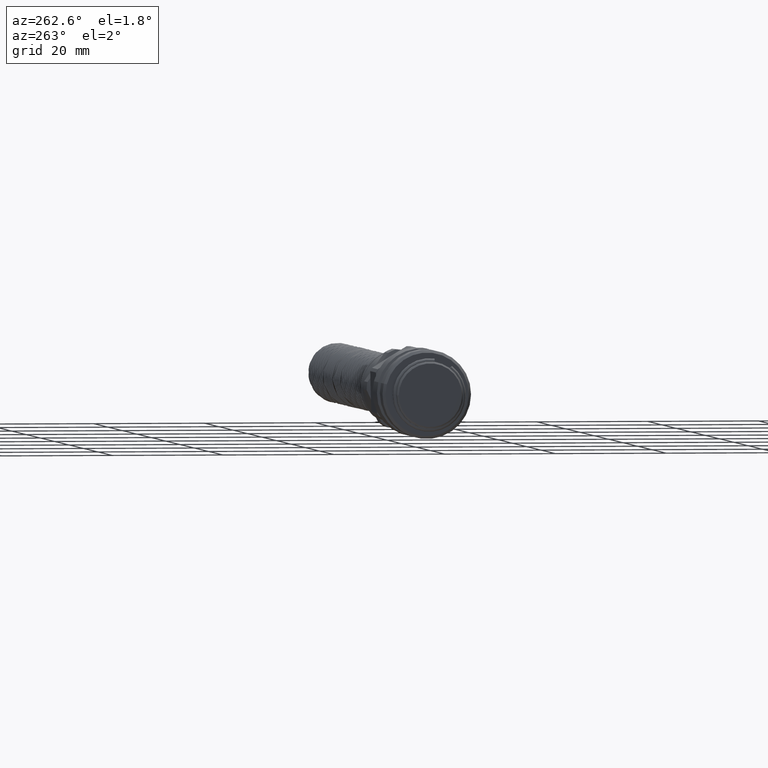
[diagram: clean part render]
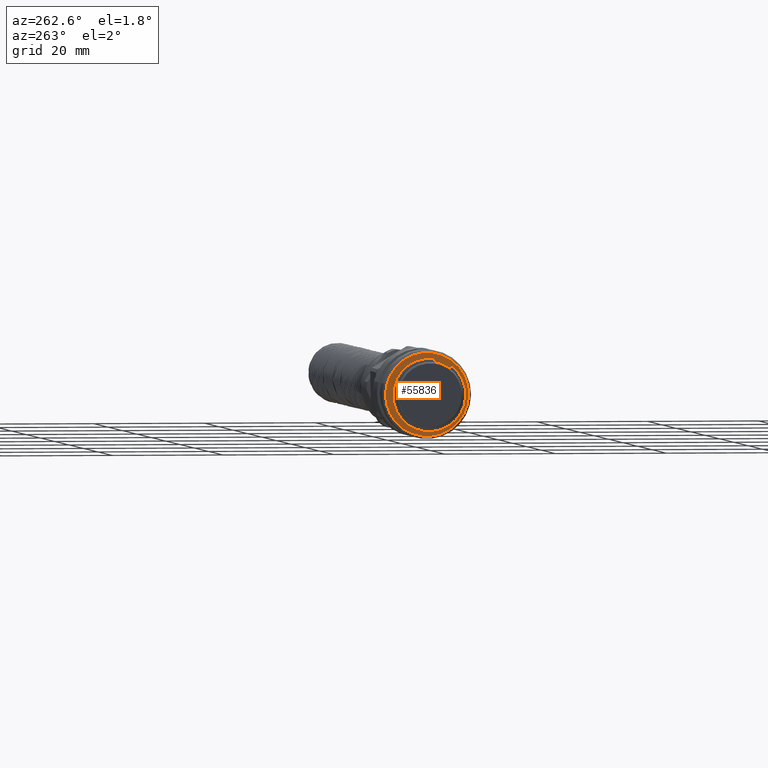
[diagram: same view with one face highlighted and labeled with its STEP entity id]
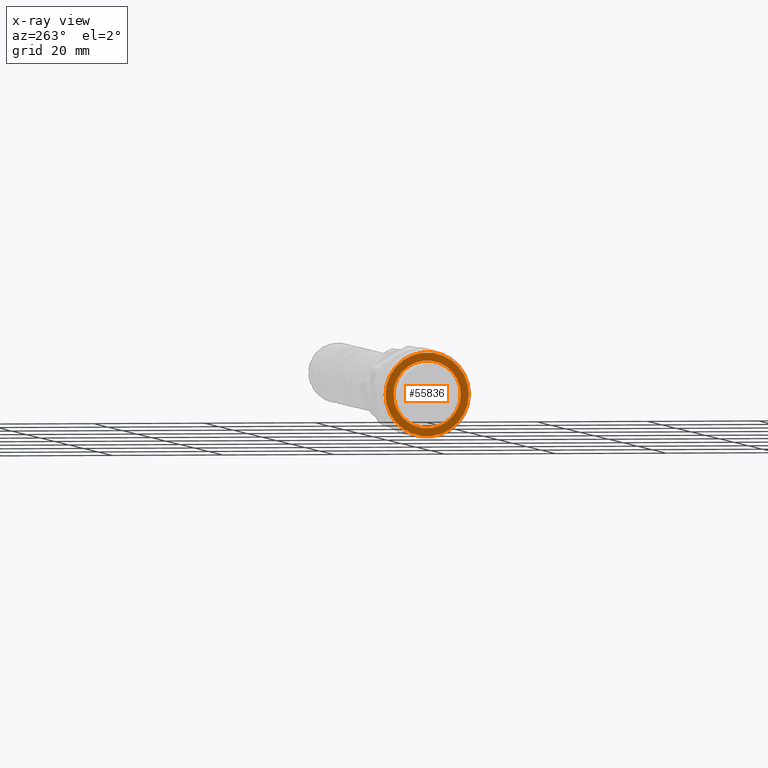
[diagram: x-ray of the same camera — body ghosted, the highlighted face saturated]
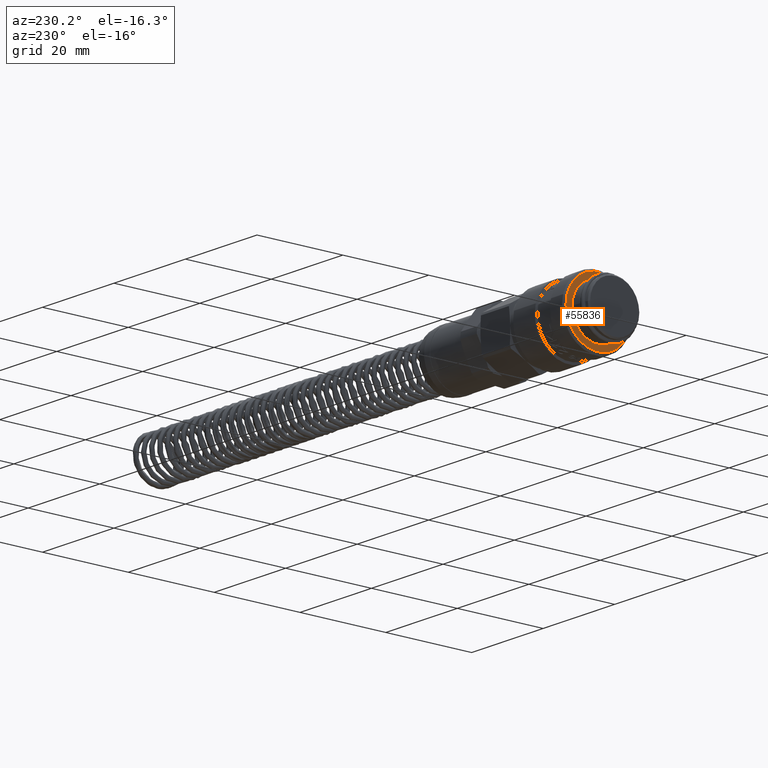
[diagram: same view with one face highlighted and labeled with its STEP entity id]
A machine part, auxiliary view. The second image highlights one B-rep face of the part: STEP entity #55836.
The next image is the same camera in x-ray: the body ghosted, the highlighted face saturated — about 0% of this face is hidden behind the body in this view.
A second angle (auxiliary view) of the same face is appended — the face is thin or edge-on in the first view.
In plain terms, the highlighted planar face has unit normal (-1, 0, 0).
Its self-contained STEP definition (entity closure, byte-faithful):
#55774=CARTESIAN_POINT('',(4.599999999999999,7.270957360796593,1.839342017537216));
#55775=VERTEX_POINT('',#55774);
#55776=CARTESIAN_POINT('',(4.599999999999999,0.0,0.0));
#55777=DIRECTION('',(1.0,0.0,0.0));
#55778=DIRECTION('',(0.0,-0.969460981439546,-0.245245602338295));
#55779=AXIS2_PLACEMENT_3D('',#55776,#55777,#55778);
#55780=CIRCLE('',#55779,7.500000000000002);
#55781=EDGE_CURVE('',#55775,#55775,#55780,.T.);
#55817=CARTESIAN_POINT('',(4.599999999999999,6.822581656880803,1.725915926455754));
#55818=DIRECTION('',(-1.0,0.0,0.0));
#55819=DIRECTION('',(0.0,-0.245245602338295,0.969460981439546));
#55820=AXIS2_PLACEMENT_3D('',#55817,#55818,#55819);
#55821=PLANE('',#55820);
#55822=ORIENTED_EDGE('',*,*,#55781,.F.);
#55823=EDGE_LOOP('',(#55822));
#55824=FACE_OUTER_BOUND('',#55823,.T.);
#55825=CARTESIAN_POINT('',(4.599999999999999,5.88947546224524,1.489867034205145));
#55826=VERTEX_POINT('',#55825);
#55827=CARTESIAN_POINT('',(4.599999999999999,0.0,0.0));
#55828=DIRECTION('',(1.0,0.0,0.0));
#55829=DIRECTION('',(0.0,0.969460981439546,0.245245602338295));
#55830=AXIS2_PLACEMENT_3D('',#55827,#55828,#55829);
#55831=CIRCLE('',#55830,6.075000000000001);
#55832=EDGE_CURVE('',#55826,#55826,#55831,.T.);
#55833=ORIENTED_EDGE('',*,*,#55832,.T.);
#55834=EDGE_LOOP('',(#55833));
#55835=FACE_BOUND('',#55834,.T.);
#55836=ADVANCED_FACE('',(#55824,#55835),#55821,.T.);